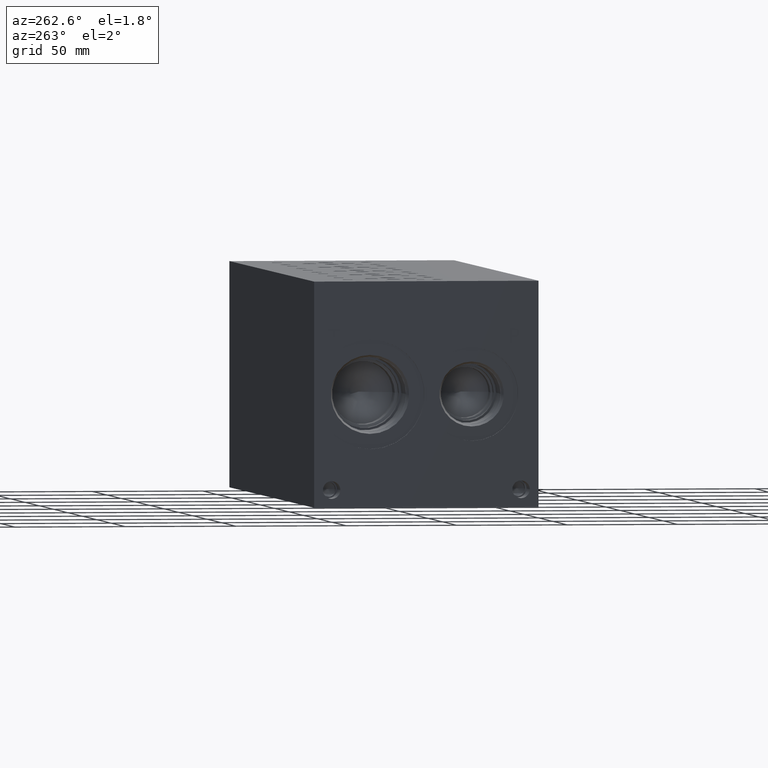
[diagram: clean part render]
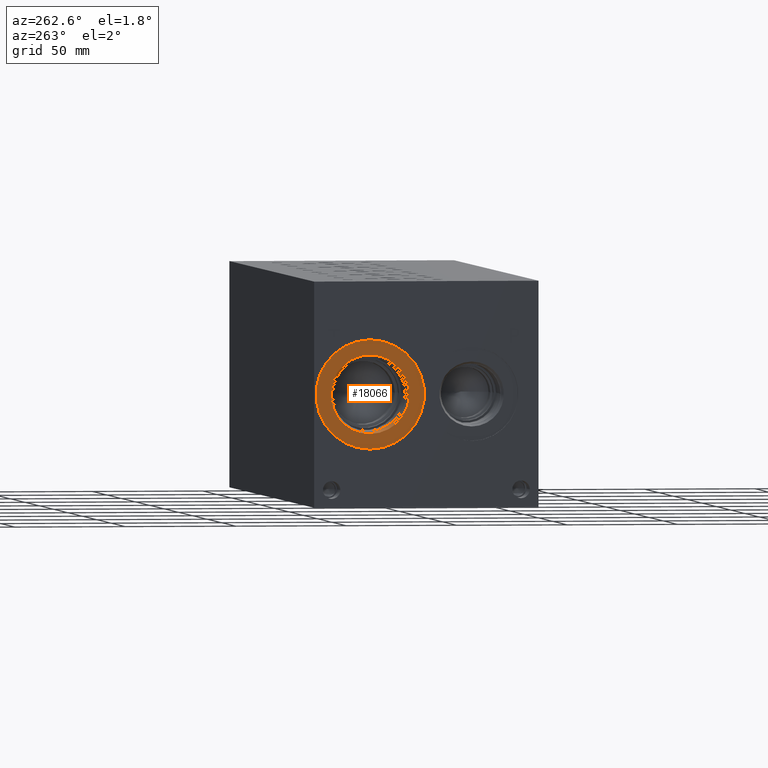
[diagram: same view with one face highlighted and labeled with its STEP entity id]
A machine part, auxiliary view. The second image highlights one B-rep face of the part: STEP entity #18066.
In plain terms, the highlighted planar face has unit normal (1, 0, 0).
Its self-contained STEP definition (entity closure, byte-faithful):
#1038=CIRCLE('',#19364,24.5618);
#1039=CIRCLE('',#19365,24.5618);
#1040=CIRCLE('',#19367,17.7546);
#1041=CIRCLE('',#19368,17.7546);
#1608=FACE_BOUND('',#3654,.T.);
#2579=FACE_OUTER_BOUND('',#3653,.T.);
#3653=EDGE_LOOP('',(#15885,#15886));
#3654=EDGE_LOOP('',(#15887,#15888));
#8508=VERTEX_POINT('',#31380);
#8509=VERTEX_POINT('',#31382);
#8510=VERTEX_POINT('',#31386);
#8511=VERTEX_POINT('',#31387);
#11012=EDGE_CURVE('',#8508,#8509,#1038,.T.);
#11013=EDGE_CURVE('',#8509,#8508,#1039,.T.);
#11014=EDGE_CURVE('',#8510,#8511,#1040,.T.);
#11015=EDGE_CURVE('',#8511,#8510,#1041,.T.);
#15885=ORIENTED_EDGE('',*,*,#11013,.F.);
#15886=ORIENTED_EDGE('',*,*,#11012,.F.);
#15887=ORIENTED_EDGE('',*,*,#11014,.T.);
#15888=ORIENTED_EDGE('',*,*,#11015,.T.);
#16544=PLANE('',#19366);
#18066=ADVANCED_FACE('',(#2579,#1608),#16544,.F.);
#19364=AXIS2_PLACEMENT_3D('',#31383,#23455,#23456);
#19365=AXIS2_PLACEMENT_3D('',#31384,#23457,#23458);
#19366=AXIS2_PLACEMENT_3D('',#31385,#23459,#23460);
#19367=AXIS2_PLACEMENT_3D('',#31388,#23461,#23462);
#19368=AXIS2_PLACEMENT_3D('',#31389,#23463,#23464);
#23455=DIRECTION('center_axis',(1.,0.,0.));
#23456=DIRECTION('ref_axis',(0.,0.,-1.));
#23457=DIRECTION('center_axis',(1.,0.,0.));
#23458=DIRECTION('ref_axis',(0.,0.,-1.));
#23459=DIRECTION('center_axis',(1.,0.,0.));
#23460=DIRECTION('ref_axis',(0.,0.,-1.));
#23461=DIRECTION('center_axis',(1.,0.,0.));
#23462=DIRECTION('ref_axis',(0.,0.,-1.));
#23463=DIRECTION('center_axis',(1.,0.,0.));
#23464=DIRECTION('ref_axis',(0.,0.,-1.));
#31380=CARTESIAN_POINT('',(0.7874,76.2,26.2382));
#31382=CARTESIAN_POINT('',(0.7874,76.2,75.3618));
#31383=CARTESIAN_POINT('Origin',(0.7874,76.2,50.8));
#31384=CARTESIAN_POINT('Origin',(0.7874,76.2,50.8));
#31385=CARTESIAN_POINT('Origin',(0.7874,76.2,68.5546));
#31386=CARTESIAN_POINT('',(0.7874,76.2,68.5546));
#31387=CARTESIAN_POINT('',(0.787400000000001,76.2,33.0454));
#31388=CARTESIAN_POINT('Origin',(0.7874,76.2,50.8));
#31389=CARTESIAN_POINT('Origin',(0.7874,76.2,50.8));